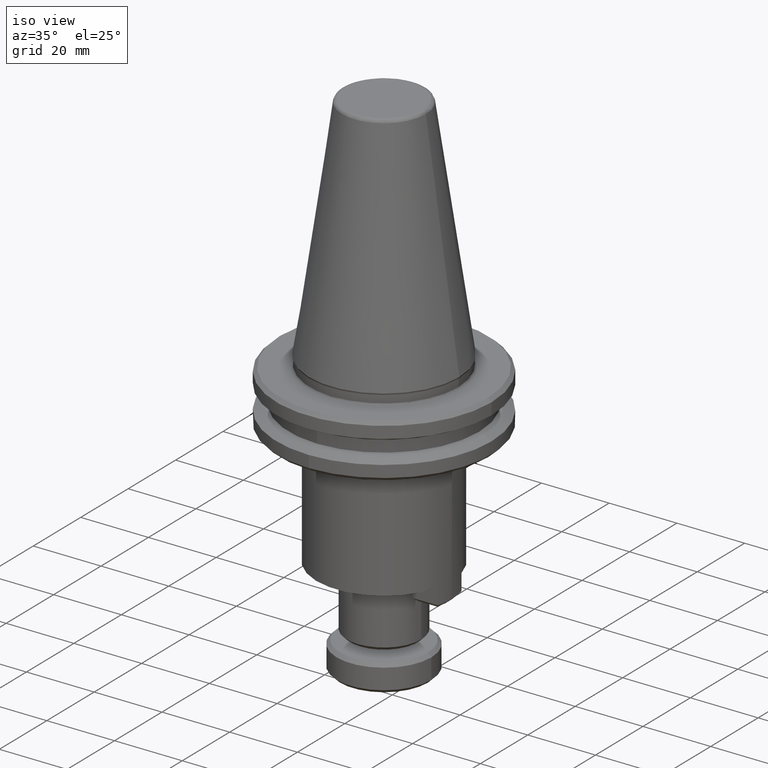
[diagram: clean part render]
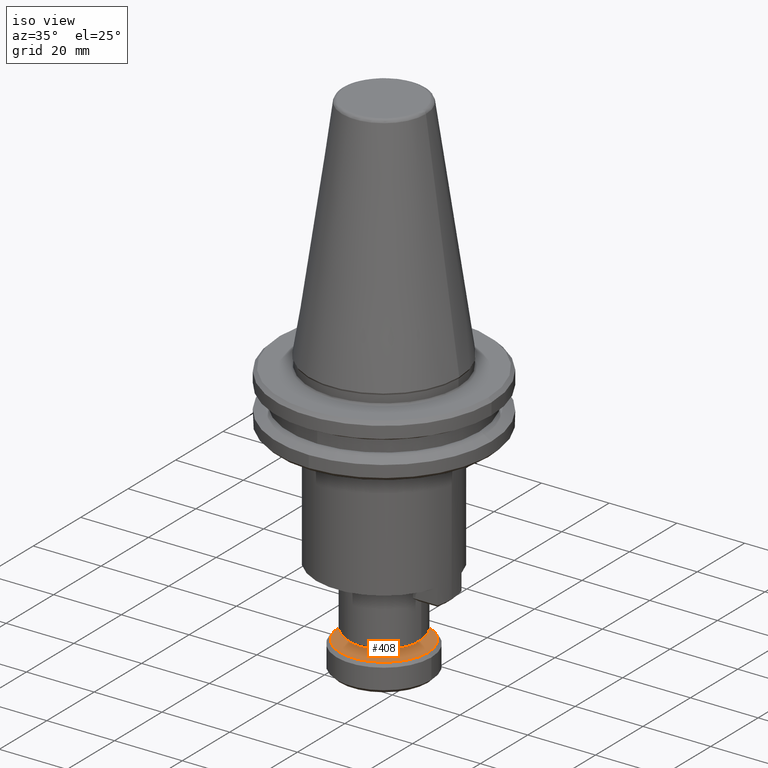
[diagram: same view with one face highlighted and labeled with its STEP entity id]
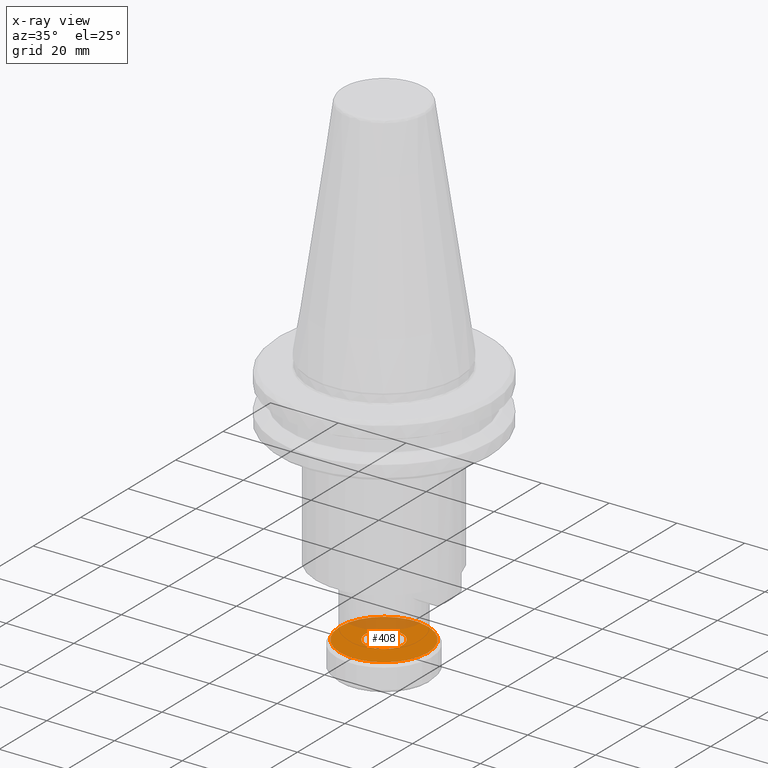
[diagram: x-ray of the same camera — body ghosted, the highlighted face saturated]
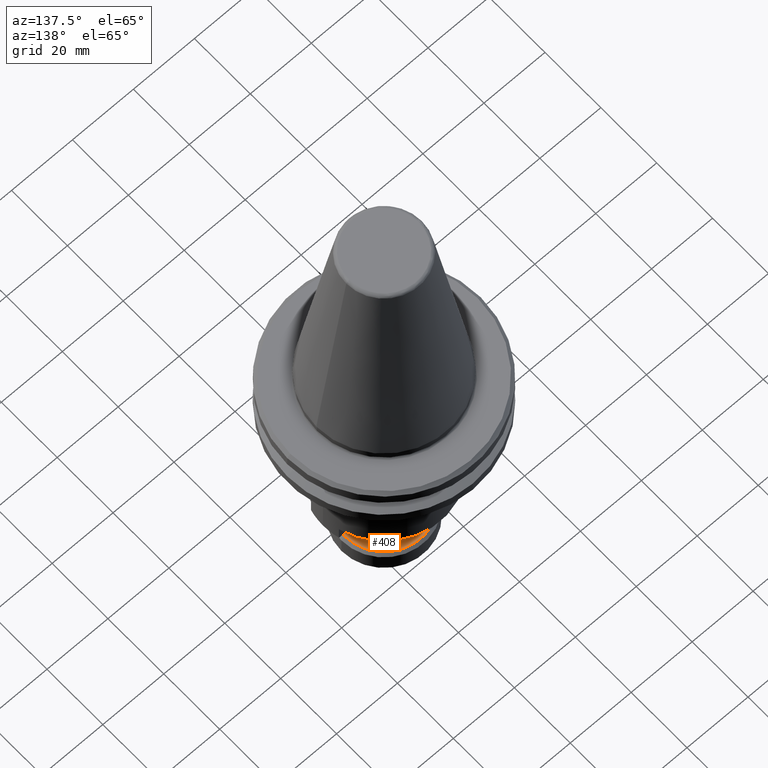
[diagram: same view with one face highlighted and labeled with its STEP entity id]
A machine part, iso view. The second image highlights one B-rep face of the part: STEP entity #408.
The next image is the same camera in x-ray: the body ghosted, the highlighted face saturated — about 22% of this face is hidden behind the body in this view.
A second angle (auxiliary view) of the same face is appended — the face is thin or edge-on in the first view.
In plain terms, the highlighted planar face has unit normal (0, -0, 1).
Its self-contained STEP definition (entity closure, byte-faithful):
#19 = CARTESIAN_POINT ( 'NONE',  ( 76.24643656128041900, 90.71605308791342300, 11.26780560809133100 ) ) ;
#24 = ORIENTED_EDGE ( 'NONE', *, *, #265, .T. ) ;
#51 = CARTESIAN_POINT ( 'NONE',  ( 78.81616413349900100, 86.06069101126570300, 11.26780560809133300 ) ) ;
#61 = CARTESIAN_POINT ( 'NONE',  ( 78.81616413349902900, 86.39727571956247200, 11.26780560809133300 ) ) ;
#90 = CIRCLE ( 'NONE', #2411, 13.00000000000000500 ) ;
#109 = CARTESIAN_POINT ( 'NONE',  ( 70.99278977409575500, 91.04741274932963800, 11.26780560809133100 ) ) ;
#130 = CARTESIAN_POINT ( 'NONE',  ( 68.16999568175465600, 88.00206007631881300, 11.26780560809133500 ) ) ;
#155 = CARTESIAN_POINT ( 'NONE',  ( 67.81616413349897200, 86.22880559515057500, 11.26780560809132900 ) ) ;
#164 = CARTESIAN_POINT ( 'NONE',  ( 78.35891620651015900, 88.25680839446549400, 11.26780560809133300 ) ) ;
#176 = CARTESIAN_POINT ( 'NONE',  ( 72.01029593736555500, 91.40474436611232500, 11.26780560809133500 ) ) ;
#177 = CARTESIAN_POINT ( 'NONE',  ( 78.02126421310603600, 88.91493534967636900, 11.26780560809133300 ) ) ;
#198 = CARTESIAN_POINT ( 'NONE',  ( 77.86882706124936200, 89.14804930748782400, 11.26780560809133300 ) ) ;
#207 = CARTESIAN_POINT ( 'NONE',  ( 68.27066263500269400, 88.25786783648094100, 11.26780560809133500 ) ) ;
#219 = CARTESIAN_POINT ( 'NONE',  ( 68.13922371385973500, 87.91847653771699800, 11.26780560809133100 ) ) ;
#220 = CARTESIAN_POINT ( 'NONE',  ( 78.49560881468555400, 87.91953233888402500, 11.26780560809133300 ) ) ;
#228 = DIRECTION ( 'NONE',  ( 0.0000000000000000000, -0.0000000000000000000, 1.000000000000000000 ) ) ;
#239 = CARTESIAN_POINT ( 'NONE',  ( 77.70222440700308700, 89.38063397367015700, 11.26780560809133300 ) ) ;
#251 = CARTESIAN_POINT ( 'NONE',  ( 78.30288587156174200, 88.38406537067072600, 11.26780560809133300 ) ) ;
#259 = CARTESIAN_POINT ( 'NONE',  ( 68.38570829603064300, 88.51050137107814900, 11.26780560809133300 ) ) ;
#261 = CARTESIAN_POINT ( 'NONE',  ( 70.62324576309681800, 81.26409747233816500, 11.26780560809133300 ) ) ;
#265 = EDGE_CURVE ( 'NONE', #1106, #292, #1859, .T. ) ;
#275 = CARTESIAN_POINT ( 'NONE',  ( 72.33727053236711400, 80.64846042501490300, 11.26780560809133600 ) ) ;
#278 = CARTESIAN_POINT ( 'NONE',  ( 74.17195120727288300, 91.49399010331649200, 11.26780560809133100 ) ) ;
#287 = CARTESIAN_POINT ( 'NONE',  ( 72.35676992231758200, 80.64497541271647700, 11.26780560809133300 ) ) ;
#292 = VERTEX_POINT ( 'NONE', #300 ) ;
#296 = CARTESIAN_POINT ( 'NONE',  ( 68.81857166359631600, 82.89355478537052600, 11.26780560809133500 ) ) ;
#300 = CARTESIAN_POINT ( 'NONE',  ( 78.81616413349900100, 86.06069101126570300, 11.26780560809133300 ) ) ;
#308 = CARTESIAN_POINT ( 'NONE',  ( 69.77168691209961100, 90.27380363557406900, 11.26780560809133300 ) ) ;
#312 = CARTESIAN_POINT ( 'NONE',  ( 73.73531094871532300, 91.54924180629180300, 11.26780560809133300 ) ) ;
#325 = CARTESIAN_POINT ( 'NONE',  ( 67.81616413349898700, 86.06069101126570300, 11.26780560809133300 ) ) ;
#338 = CARTESIAN_POINT ( 'NONE',  ( 68.00149243044782600, 87.49609793370683500, 11.26780560809132900 ) ) ;
#346 = CARTESIAN_POINT ( 'NONE',  ( 67.90393354724825800, 87.03958461239796000, 11.26780560809133300 ) ) ;
#347 = CARTESIAN_POINT ( 'NONE',  ( 78.58160856749887600, 87.66730714336458200, 11.26780560809133100 ) ) ;
#358 = CARTESIAN_POINT ( 'NONE',  ( 77.52927675780723900, 89.60516823266533500, 11.26780560809133300 ) ) ;
#364 = CARTESIAN_POINT ( 'NONE',  ( 60.31616413349898700, 86.06069101126570300, 11.26780560809133300 ) ) ;
#381 = DIRECTION ( 'NONE',  ( 1.000000000000000000, 0.0000000000000000000, -0.0000000000000000000 ) ) ;
#383 = CARTESIAN_POINT ( 'NONE',  ( 67.81616413349895800, 85.72410630297032700, 11.26780560809132900 ) ) ;
#384 = CARTESIAN_POINT ( 'NONE',  ( 67.86111790708561400, 86.77131483020353600, 11.26780560809133600 ) ) ;
#401 = CARTESIAN_POINT ( 'NONE',  ( 78.69409091774291200, 87.21456393745488400, 11.26780560809133300 ) ) ;
#408 = ADVANCED_FACE ( 'NONE', ( #2570, #2574 ), #659, .T. ) ;
#411 = CARTESIAN_POINT ( 'NONE',  ( 71.11898730828167500, 81.01518951277086000, 11.26780560809133300 ) ) ;
#415 = CARTESIAN_POINT ( 'NONE',  ( 78.70744430940789000, 87.14907568562848900, 11.26780560809133500 ) ) ;
#441 = CARTESIAN_POINT ( 'NONE',  ( 68.13671945231215000, 84.20184968364847600, 11.26780560809133300 ) ) ;
#453 = CARTESIAN_POINT ( 'NONE',  ( 72.22777945913689700, 91.45197118717470600, 11.26780560809133500 ) ) ;
#455 = CARTESIAN_POINT ( 'NONE',  ( 78.78555730892938400, 86.73087464898478100, 11.26780560809133100 ) ) ;
#464 = CARTESIAN_POINT ( 'NONE',  ( 68.51957059456947300, 88.75360938166504400, 11.26780560809133300 ) ) ;
#474 = CARTESIAN_POINT ( 'NONE',  ( 73.48419111446071400, 91.56070721368838900, 11.26780560809133100 ) ) ;
#485 = CARTESIAN_POINT ( 'NONE',  ( 69.10305150919037900, 82.51621378986664000, 11.26780560809133500 ) ) ;
#497 = CARTESIAN_POINT ( 'NONE',  ( 68.93010385999463100, 82.74074804886170400, 11.26780560809133300 ) ) ;
#525 = CARTESIAN_POINT ( 'NONE',  ( 75.29752105543217100, 91.19161020644649800, 11.26780560809133500 ) ) ;
#537 = CARTESIAN_POINT ( 'NONE',  ( 68.61299360193112300, 88.91356460560959400, 11.26780560809133600 ) ) ;
#548 = CARTESIAN_POINT ( 'NONE',  ( 68.21873073399149200, 83.99475021493215400, 11.26780560809133100 ) ) ;
#588 = CARTESIAN_POINT ( 'NONE',  ( 71.20543345224692200, 91.13976134650033600, 11.26780560809133100 ) ) ;
#610 = CARTESIAN_POINT ( 'NONE',  ( 71.70954800140259500, 91.32613544526594800, 11.26780560809133500 ) ) ;
#626 = CARTESIAN_POINT ( 'NONE',  ( 71.25022333716533800, 91.15812441077321200, 11.26780560809133100 ) ) ;
#659 = PLANE ( 'NONE',  #2396 ) ;
#663 = CARTESIAN_POINT ( 'NONE',  ( 68.23709379826469500, 83.94996033001318400, 11.26780560809133100 ) ) ;
#683 = CARTESIAN_POINT ( 'NONE',  ( 67.81616413349898700, 86.06069101126570300, 11.26780560809133300 ) ) ;
#690 = CARTESIAN_POINT ( 'NONE',  ( 67.89327898446538300, 86.97869425492105200, 11.26780560809133100 ) ) ;
#692 = CARTESIAN_POINT ( 'NONE',  ( 67.91624031700514800, 85.01604237630961300, 11.26780560809133600 ) ) ;
#703 = CARTESIAN_POINT ( 'NONE',  ( 73.31616413349898700, 73.06069101126570300, 11.26780560809133300 ) ) ;
#711 = CARTESIAN_POINT ( 'NONE',  ( 67.92488395758996900, 84.97230633690345800, 11.26780560809133300 ) ) ;
#721 = CARTESIAN_POINT ( 'NONE',  ( 67.93823734925477700, 84.90681808507734700, 11.26780560809133300 ) ) ;
#726 = CARTESIAN_POINT ( 'NONE',  ( 67.97211077865219400, 84.75482281513173200, 11.26780560809133500 ) ) ;
#728 = CARTESIAN_POINT ( 'NONE',  ( 68.05071969949852900, 84.45407487916867200, 11.26780560809133300 ) ) ;
#735 = CARTESIAN_POINT ( 'NONE',  ( 68.27341206048765800, 83.86457362806629600, 11.26780560809133100 ) ) ;
#739 = CARTESIAN_POINT ( 'NONE',  ( 68.32944239543586200, 83.73731665186123500, 11.26780560809133300 ) ) ;
#745 = CARTESIAN_POINT ( 'NONE',  ( 68.47105043494561000, 83.44614524439001000, 11.26780560809133500 ) ) ;
#747 = CARTESIAN_POINT ( 'NONE',  ( 68.61106405389169500, 83.20644667285543500, 11.26780560809133100 ) ) ;
#750 = CARTESIAN_POINT ( 'NONE',  ( 68.76350120574876700, 82.97333271504339800, 11.26780560809133100 ) ) ;
#751 = ORIENTED_EDGE ( 'NONE', *, *, #1070, .T. ) ;
#758 = CARTESIAN_POINT ( 'NONE',  ( 69.29294722218129700, 82.30570706817594800, 11.26780560809133500 ) ) ;
#759 = CARTESIAN_POINT ( 'NONE',  ( 69.69533606655642200, 81.90339700786718400, 11.26780560809133100 ) ) ;
#765 = CARTESIAN_POINT ( 'NONE',  ( 69.98898562653299400, 81.66476275934384400, 11.26780560809133300 ) ) ;
#770 = CARTESIAN_POINT ( 'NONE',  ( 70.38589170571765400, 81.40532893461798400, 11.26780560809133800 ) ) ;
#780 = CARTESIAN_POINT ( 'NONE',  ( 70.46329053915333400, 81.35752047969906200, 11.26780560809133500 ) ) ;
#783 = CARTESIAN_POINT ( 'NONE',  ( 71.33480721156541900, 80.92977181608519300, 11.26780560809132900 ) ) ;
#787 = CARTESIAN_POINT ( 'NONE',  ( 71.37479506844455600, 80.91452255952161500, 11.26780560809132900 ) ) ;
#788 = CARTESIAN_POINT ( 'NONE',  ( 71.45837860704534700, 80.88375059162692100, 11.26780560809133100 ) ) ;
#805 = CARTESIAN_POINT ( 'NONE',  ( 67.84677095806860300, 85.39050737354810400, 11.26780560809133100 ) ) ;
#813 = CARTESIAN_POINT ( 'NONE',  ( 67.91181046027904200, 85.03923090108961000, 11.26780560809133500 ) ) ;
#820 = CARTESIAN_POINT ( 'NONE',  ( 71.58418561601132500, 80.83915346779086500, 11.26780560809133100 ) ) ;
#822 = CARTESIAN_POINT ( 'NONE',  ( 71.88075721105289500, 80.74601930821552300, 11.26780560809133300 ) ) ;
#832 = CARTESIAN_POINT ( 'NONE',  ( 72.39820126931513800, 80.63779839392809400, 11.26780560809133300 ) ) ;
#839 = CARTESIAN_POINT ( 'NONE',  ( 72.46037705972364100, 80.62739191921524200, 11.26780560809133500 ) ) ;
#844 = CARTESIAN_POINT ( 'NONE',  ( 72.60565529339528700, 80.60562351917307900, 11.26780560809133100 ) ) ;
#846 = CARTESIAN_POINT ( 'NONE',  ( 72.89701731827928200, 80.57214021624032800, 11.26780560809133300 ) ) ;
#854 = CARTESIAN_POINT ( 'NONE',  ( 70.46191979508968500, 90.76579109087369100, 11.26780560809133500 ) ) ;
#861 = CARTESIAN_POINT ( 'NONE',  ( 73.14813715253536900, 80.56067480884343000, 11.26780560809133100 ) ) ;
#872 = CARTESIAN_POINT ( 'NONE',  ( 74.36081276845493400, 80.66076719477180700, 11.26780560809133100 ) ) ;
#876 = CARTESIAN_POINT ( 'NONE',  ( 72.16229120731088600, 91.43861779550979900, 11.26780560809133300 ) ) ;
#893 = CARTESIAN_POINT ( 'NONE',  ( 74.40454880786099100, 80.66941083535658700, 11.26780560809132900 ) ) ;
#904 = CARTESIAN_POINT ( 'NONE',  ( 76.64334264046465300, 90.45661926318776100, 11.26780560809132900 ) ) ;
#905 = CARTESIAN_POINT ( 'NONE',  ( 74.47003705968693100, 80.68276422702139400, 11.26780560809133600 ) ) ;
#913 = CARTESIAN_POINT ( 'NONE',  ( 74.62203232963214800, 80.71663765641876900, 11.26780560809133500 ) ) ;
#917 = CARTESIAN_POINT ( 'NONE',  ( 67.81616413349898700, 86.06069101126570300, 11.26780560809133300 ) ) ;
#924 = CARTESIAN_POINT ( 'NONE',  ( 74.92278026559493800, 80.79524657726501900, 11.26780560809133100 ) ) ;
#931 = CARTESIAN_POINT ( 'NONE',  ( 75.51228151669818100, 81.01793893825414700, 11.26780560809133300 ) ) ;
#932 = CARTESIAN_POINT ( 'NONE',  ( 69.99622117109474600, 90.44675128476990300, 11.26780560809133300 ) ) ;
#937 = CARTESIAN_POINT ( 'NONE',  ( 75.63953849290308500, 81.07396927320229500, 11.26780560809133300 ) ) ;
#938 = CARTESIAN_POINT ( 'NONE',  ( 75.93070990037422500, 81.21557731271187200, 11.26780560809133500 ) ) ;
#951 = CARTESIAN_POINT ( 'NONE',  ( 76.17040847190899900, 81.35559093165819900, 11.26780560809133500 ) ) ;
#954 = CARTESIAN_POINT ( 'NONE',  ( 76.40352242972142000, 81.50802808351561200, 11.26780560809133600 ) ) ;
#966 = CARTESIAN_POINT ( 'NONE',  ( 77.07114807658804500, 82.03747409994758800, 11.26780560809133500 ) ) ;
#969 = CARTESIAN_POINT ( 'NONE',  ( 78.81616413349900100, 86.06069101126570300, 11.26780560809133300 ) ) ;
#979 = CARTESIAN_POINT ( 'NONE',  ( 74.23412699768195500, 91.48358362860351200, 11.26780560809133100 ) ) ;
#1005 = CARTESIAN_POINT ( 'NONE',  ( 77.47345813689894100, 82.43986294432397700, 11.26780560809132900 ) ) ;
#1013 = CARTESIAN_POINT ( 'NONE',  ( 77.71209238541823100, 82.73351250429647100, 11.26780560809133500 ) ) ;
#1022 = CARTESIAN_POINT ( 'NONE',  ( 77.97152621014740200, 83.13041858348515200, 11.26780560809133100 ) ) ;
#1025 = CARTESIAN_POINT ( 'NONE',  ( 78.01933466506564200, 83.20781741691969600, 11.26780560809132900 ) ) ;
#1054 = CARTESIAN_POINT ( 'NONE',  ( 78.44708332867946900, 84.07933408933224900, 11.26780560809133300 ) ) ;
#1062 = CARTESIAN_POINT ( 'NONE',  ( 77.81375660340150100, 89.22782723716122200, 11.26780560809133600 ) ) ;
#1069 = CARTESIAN_POINT ( 'NONE',  ( 78.41359753300656600, 88.12663180759898300, 11.26780560809132900 ) ) ;
#1070 = EDGE_CURVE ( 'NONE', #292, #1106, #1417, .T. ) ;
#1073 = CARTESIAN_POINT ( 'NONE',  ( 78.39523446873317900, 88.17142169251846400, 11.26780560809133500 ) ) ;
#1079 = CARTESIAN_POINT ( 'NONE',  ( 78.46233258524318900, 84.11932194621167000, 11.26780560809133500 ) ) ;
#1106 = VERTEX_POINT ( 'NONE', #917 ) ;
#1111 = CARTESIAN_POINT ( 'NONE',  ( 78.49310455313794000, 84.20290548481276000, 11.26780560809133300 ) ) ;
#1112 = CARTESIAN_POINT ( 'NONE',  ( 78.16127783205193700, 88.67523677814212100, 11.26780560809132900 ) ) ;
#1117 = CARTESIAN_POINT ( 'NONE',  ( 78.53770167697405200, 84.32871249377916500, 11.26780560809133300 ) ) ;
#1119 = CARTESIAN_POINT ( 'NONE',  ( 78.63083583654953700, 84.62528408882111800, 11.26780560809133300 ) ) ;
#1125 = CARTESIAN_POINT ( 'NONE',  ( 78.73904928253259100, 85.14268776761034000, 11.26780560809133100 ) ) ;
#1130 = CARTESIAN_POINT ( 'NONE',  ( 78.74945082056990500, 85.20483686650379700, 11.26780560809133100 ) ) ;
#1140 = CARTESIAN_POINT ( 'NONE',  ( 78.77121035991237400, 85.35006719232791300, 11.26780560809133100 ) ) ;
#1141 = CARTESIAN_POINT ( 'NONE',  ( 78.72051780671897300, 87.08215112144174000, 11.26780560809133300 ) ) ;
#1148 = CARTESIAN_POINT ( 'NONE',  ( 78.80468657428537000, 85.64139089093384900, 11.26780560809133300 ) ) ;
#1159 = CARTESIAN_POINT ( 'NONE',  ( 78.71608794999279700, 87.10533964622207700, 11.26780560809133600 ) ) ;
#1165 = CARTESIAN_POINT ( 'NONE',  ( 78.81616413349898700, 85.89257642738084500, 11.26780560809133100 ) ) ;
#1216 = CARTESIAN_POINT ( 'NONE',  ( 76.93699220044193500, 90.21798501466364000, 11.26780560809133100 ) ) ;
#1238 = CARTESIAN_POINT ( 'NONE',  ( 78.66021748834532400, 87.36655920740105300, 11.26780560809133300 ) ) ;
#1266 = VERTEX_POINT ( 'NONE', #364 ) ;
#1298 = CARTESIAN_POINT ( 'NONE',  ( 74.02667297360024200, 91.51575850335885300, 11.26780560809133500 ) ) ;
#1313 = CARTESIAN_POINT ( 'NONE',  ( 86.31616413349898700, 86.06069101126570300, 11.26780560809133300 ) ) ;
#1326 = CARTESIAN_POINT ( 'NONE',  ( 67.88287744642809700, 86.91654515602765200, 11.26780560809133300 ) ) ;
#1327 = CARTESIAN_POINT ( 'NONE',  ( 75.25753319855442700, 91.20685946300960700, 11.26780560809133500 ) ) ;
#1368 = CARTESIAN_POINT ( 'NONE',  ( 69.56118019040906100, 90.08390792258326500, 11.26780560809133300 ) ) ;
#1378 = CARTESIAN_POINT ( 'NONE',  ( 74.29505773463060300, 91.47292159751654600, 11.26780560809133300 ) ) ;
#1389 = CARTESIAN_POINT ( 'NONE',  ( 72.64580511039072500, 91.53005171376017300, 11.26780560809133100 ) ) ;
#1409 = EDGE_CURVE ( 'NONE', #1266, #1485, #1781, .T. ) ;
#1417 = B_SPLINE_CURVE_WITH_KNOTS ( 'NONE', 3,
 ( #969, #1165, #1148, #1140, #1130, #1125, #2659, #2657, #2624, #1119, #1117, #1111, #1079, #1054, #2704, #2685, #2647, #1025, #1022, #1013, #1005, #966, #2754, #2740, #2668, #954, #951, #938, #937, #931, #2802, #2793, #2735, #924, #913, #905, #893, #872, #2296, #2834, #2781, #861, #846, #844, #839, #832, #287, #275, #2824, #822, #820, #788, #787, #783, #411, #1624, #261, #780, #770, #765, #759, #758, #485, #497, #296, #750, #747, #745, #739, #735, #663, #548, #441, #728, #726, #721, #711, #692, #813, #805, #383, #683 ),
 .UNSPECIFIED., .F., .F.,
 ( 4, 1, 1, 1, 2, 2, 1, 1, 2, 2, 1, 2, 2, 2, 1, 2, 2, 1, 1, 2, 2, 1, 1, 1, 2, 2, 2, 1, 1, 1, 2, 2, 1, 1, 2, 2, 1, 2, 2, 2, 1, 2, 2, 1, 1, 2, 2, 1, 1, 1, 2, 2, 4 ),
 ( 0.0000000000000000000, 0.03124999999999120100, 0.04687499999998680200, 0.05468749999998331900, 0.05859374999998051600, 0.06249999999997770500, 0.09374999999995983800, 0.1093749999999524100, 0.1171874999999475600, 0.1249999999999426800, 0.1562499999999323000, 0.1718749999999265900, 0.1874999999999208400, 0.2499999999998972800, 0.2812499999998855400, 0.2968749999998796000, 0.3124999999998737100, 0.3437499999998639400, 0.3593749999998595000, 0.3671874999998568400, 0.3749999999998541200, 0.4062499999998448500, 0.4218749999998416300, 0.4296874999998400700, 0.4335937499998393000, 0.4374999999998385200, 0.4999999999998141500, 0.5312499999998007100, 0.5468749999997952700, 0.5546874999997925000, 0.5585937499997923900, 0.5624999999997923900, 0.5937499999998043800, 0.6093749999998113700, 0.6171874999998148100, 0.6249999999998182600, 0.6562499999998342400, 0.6718749999998426800, 0.6874999999998511200, 0.7499999999998890900, 0.7812499999999064100, 0.7968749999999150700, 0.8124999999999237300, 0.8437499999999391600, 0.8593749999999463800, 0.8671874999999504800, 0.8749999999999545900, 0.9062499999999662500, 0.9218749999999728000, 0.9296874999999749100, 0.9335937499999760200, 0.9374999999999771300, 1.000000000000000000 ),
 .UNSPECIFIED. ) ;
#1423 = CARTESIAN_POINT ( 'NONE',  ( 68.09462659002343800, 87.79266952874962700, 11.26780560809133500 ) ) ;
#1427 = DIRECTION ( 'NONE',  ( -1.000000000000000000, 0.0000000000000000000, 0.0000000000000000000 ) ) ;
#1434 = CARTESIAN_POINT ( 'NONE',  ( 67.94039308688442700, 87.23671329660902500, 11.26780560809133600 ) ) ;
#1436 = CARTESIAN_POINT ( 'NONE',  ( 73.31616413349898700, 86.06069101126570300, 11.26780560809133300 ) ) ;
#1452 = CARTESIAN_POINT ( 'NONE',  ( 74.49218641884719700, 91.43646205787926800, 11.26780560809133100 ) ) ;
#1485 = VERTEX_POINT ( 'NONE', #1313 ) ;
#1489 = CARTESIAN_POINT ( 'NONE',  ( 71.12004675030038900, 91.10344308427764300, 11.26780560809133500 ) ) ;
#1503 = CARTESIAN_POINT ( 'NONE',  ( 76.00908250390341400, 90.85728455019186400, 11.26780560809133300 ) ) ;
#1511 = CARTESIAN_POINT ( 'NONE',  ( 72.29471498490977400, 91.46504671404413500, 11.26780560809132900 ) ) ;
#1540 = ORIENTED_EDGE ( 'NONE', *, *, #2271, .T. ) ;
#1550 = CARTESIAN_POINT ( 'NONE',  ( 72.98011017157554600, 91.56065860642031900, 11.26780560809132900 ) ) ;
#1555 = DIRECTION ( 'NONE',  ( -0.0000000000000000000, -0.0000000000000000000, 1.000000000000000000 ) ) ;
#1624 = CARTESIAN_POINT ( 'NONE',  ( 70.86635377368288900, 81.13023517379984600, 11.26780560809133100 ) ) ;
#1633 = CARTESIAN_POINT ( 'NONE',  ( 74.75157105594871600, 91.37536271431511600, 11.26780560809133300 ) ) ;
#1663 = CARTESIAN_POINT ( 'NONE',  ( 67.90045245897388800, 87.02010643877963500, 11.26780560809133500 ) ) ;
#1715 = CARTESIAN_POINT ( 'NONE',  ( 76.16903772784608900, 90.76386154283140700, 11.26780560809133300 ) ) ;
#1718 = CARTESIAN_POINT ( 'NONE',  ( 75.51334095871789000, 91.10619250975949500, 11.26780560809133100 ) ) ;
#1732 = CARTESIAN_POINT ( 'NONE',  ( 75.76597449331789800, 90.99114684872974100, 11.26780560809133100 ) ) ;
#1740 = CARTESIAN_POINT ( 'NONE',  ( 67.82764169271260400, 86.47999113159752900, 11.26780560809133300 ) ) ;
#1781 = CIRCLE ( 'NONE', #2145, 13.00000000000000500 ) ;
#1821 = CARTESIAN_POINT ( 'NONE',  ( 75.04814265098940500, 91.28222855473998700, 11.26780560809133500 ) ) ;
#1857 = CARTESIAN_POINT ( 'NONE',  ( 68.92023588157742600, 89.38786951823202300, 11.26780560809133500 ) ) ;
#1859 = B_SPLINE_CURVE_WITH_KNOTS ( 'NONE', 3,
 ( #325, #155, #1740, #384, #1326, #690, #1663, #346, #1434, #338, #1423, #219, #130, #2826, #207, #259, #464, #537, #2266, #1857, #2331, #1368, #308, #932, #2327, #2322, #854, #2374, #109, #1489, #588, #626, #2160, #610, #176, #876, #453, #2812, #1511, #1389, #1550, #474, #312, #1298, #278, #979, #1935, #1378, #1452, #1633, #1821, #2319, #1327, #525, #1718, #1732, #1503, #1715, #19, #904, #1216, #2344, #358, #239, #1062, #198, #177, #1112, #251, #164, #1073, #1069, #220, #347, #1238, #401, #415, #1159, #1141, #455, #61, #51 ),
 .UNSPECIFIED., .F., .F.,
 ( 4, 1, 1, 1, 2, 2, 1, 1, 2, 2, 1, 2, 2, 2, 1, 2, 2, 1, 1, 2, 2, 1, 1, 1, 2, 2, 2, 1, 1, 1, 2, 2, 1, 1, 2, 2, 1, 2, 2, 2, 1, 2, 2, 1, 1, 2, 2, 1, 1, 1, 2, 2, 4 ),
 ( 0.0000000000000000000, 0.03124999999998912000, 0.04687499999998368000, 0.05468749999998096000, 0.05859374999998107800, 0.06249999999998119600, 0.09374999999998473400, 0.1093749999999873400, 0.1171874999999874800, 0.1249999999999876200, 0.1562499999999847100, 0.1718749999999827100, 0.1874999999999807100, 0.2499999999999752400, 0.2812499999999725200, 0.2968749999999711300, 0.3124999999999698000, 0.3437499999999683600, 0.3593749999999681900, 0.3671874999999676400, 0.3749999999999670800, 0.4062499999999620900, 0.4218749999999587600, 0.4296874999999568100, 0.4335937499999569800, 0.4374999999999572000, 0.4999999999999590300, 0.5312499999999585900, 0.5468749999999571500, 0.5546874999999561500, 0.5585937499999570300, 0.5624999999999579200, 0.5937499999999557000, 0.6093749999999554800, 0.6171874999999552600, 0.6249999999999551500, 0.6562499999999551500, 0.6718749999999557000, 0.6874999999999562600, 0.7499999999999659200, 0.7812499999999706900, 0.7968749999999731300, 0.8124999999999755800, 0.8437499999999803500, 0.8593749999999833500, 0.8671874999999836800, 0.8749999999999841200, 0.9062499999999897900, 0.9218749999999934500, 0.9296874999999952300, 0.9335937499999962300, 0.9374999999999972200, 1.000000000000000000 ),
 .UNSPECIFIED. ) ;
#1935 = CARTESIAN_POINT ( 'NONE',  ( 74.27555834467992200, 91.47640660981501500, 11.26780560809133100 ) ) ;
#2145 = AXIS2_PLACEMENT_3D ( 'NONE', #1436, #1555, #1427 ) ;
#2155 = ORIENTED_EDGE ( 'NONE', *, *, #1409, .T. ) ;
#2160 = CARTESIAN_POINT ( 'NONE',  ( 71.45732280588212900, 91.24013569245244100, 11.26780560809133100 ) ) ;
#2202 = CARTESIAN_POINT ( 'NONE',  ( 73.31616413349898700, 86.06069101126570300, 11.26780560809133300 ) ) ;
#2262 = EDGE_LOOP ( 'NONE', ( #2155, #1540 ) ) ;
#2266 = CARTESIAN_POINT ( 'NONE',  ( 68.66080205685115300, 88.99096343904699300, 11.26780560809133100 ) ) ;
#2271 = EDGE_CURVE ( 'NONE', #1485, #1266, #90, .T. ) ;
#2296 = CARTESIAN_POINT ( 'NONE',  ( 74.33761328208859700, 80.65633530848730000, 11.26780560809133100 ) ) ;
#2319 = CARTESIAN_POINT ( 'NONE',  ( 75.17394965995443100, 91.23763143090414500, 11.26780560809133300 ) ) ;
#2322 = CARTESIAN_POINT ( 'NONE',  ( 70.22880583727622600, 90.61335393901559600, 11.26780560809133100 ) ) ;
#2327 = CARTESIAN_POINT ( 'NONE',  ( 70.14902790760365300, 90.55828348116826000, 11.26780560809133100 ) ) ;
#2331 = CARTESIAN_POINT ( 'NONE',  ( 69.15887013010078000, 89.68151907820856600, 11.26780560809133300 ) ) ;
#2344 = CARTESIAN_POINT ( 'NONE',  ( 77.33938104481650600, 89.81567495435574200, 11.26780560809133100 ) ) ;
#2374 = CARTESIAN_POINT ( 'NONE',  ( 70.70161836662488500, 90.90580470982025900, 11.26780560809133500 ) ) ;
#2385 = EDGE_LOOP ( 'NONE', ( #24, #751 ) ) ;
#2396 = AXIS2_PLACEMENT_3D ( 'NONE', #703, #228, #381 ) ;
#2411 = AXIS2_PLACEMENT_3D ( 'NONE', #2202, #2712, #2683 ) ;
#2570 = FACE_BOUND ( 'NONE', #2385, .T. ) ;
#2574 = FACE_OUTER_BOUND ( 'NONE', #2262, .T. ) ;
#2624 = CARTESIAN_POINT ( 'NONE',  ( 78.69193518011319100, 84.88466872592040600, 11.26780560809133600 ) ) ;
#2647 = CARTESIAN_POINT ( 'NONE',  ( 78.11275767242658200, 83.36777264086303800, 11.26780560809133500 ) ) ;
#2657 = CARTESIAN_POINT ( 'NONE',  ( 78.72839471974978700, 85.08179741013371700, 11.26780560809133300 ) ) ;
#2659 = CARTESIAN_POINT ( 'NONE',  ( 78.73187580802407100, 85.10127558375181400, 11.26780560809133500 ) ) ;
#2668 = CARTESIAN_POINT ( 'NONE',  ( 76.48330035939359600, 81.56309854136269200, 11.26780560809133600 ) ) ;
#2683 = DIRECTION ( 'NONE',  ( -1.000000000000000000, 0.0000000000000000000, 0.0000000000000000000 ) ) ;
#2685 = CARTESIAN_POINT ( 'NONE',  ( 78.24661997096490000, 83.61088065144898000, 11.26780560809133300 ) ) ;
#2704 = CARTESIAN_POINT ( 'NONE',  ( 78.36166563199385800, 83.86351418604803600, 11.26780560809133500 ) ) ;
#2712 = DIRECTION ( 'NONE',  ( -0.0000000000000000000, -0.0000000000000000000, 1.000000000000000000 ) ) ;
#2735 = CARTESIAN_POINT ( 'NONE',  ( 75.17500546111564600, 80.88124633007875300, 11.26780560809133500 ) ) ;
#2740 = CARTESIAN_POINT ( 'NONE',  ( 76.63610709590202000, 81.67463073776072200, 11.26780560809132900 ) ) ;
#2754 = CARTESIAN_POINT ( 'NONE',  ( 76.86064135489682800, 81.84757838695635700, 11.26780560809133600 ) ) ;
#2781 = CARTESIAN_POINT ( 'NONE',  ( 73.65221809542625000, 80.56072341611026400, 11.26780560809133500 ) ) ;
#2793 = CARTESIAN_POINT ( 'NONE',  ( 75.38210492983270700, 80.96325761175825200, 11.26780560809133300 ) ) ;
#2802 = CARTESIAN_POINT ( 'NONE',  ( 75.42689481475136400, 80.98162067603129800, 11.26780560809132900 ) ) ;
#2812 = CARTESIAN_POINT ( 'NONE',  ( 72.27151549854295400, 91.46061482775958500, 11.26780560809133300 ) ) ;
#2824 = CARTESIAN_POINT ( 'NONE',  ( 72.14014184815286500, 80.68491996465168400, 11.26780560809133300 ) ) ;
#2826 = CARTESIAN_POINT ( 'NONE',  ( 68.18524493831886000, 88.04204793319979700, 11.26780560809133500 ) ) ;
#2834 = CARTESIAN_POINT ( 'NONE',  ( 73.98652315660069700, 80.59133030877040900, 11.26780560809133300 ) ) ;